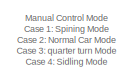
[diagram: root canvas - part 1/3, top left region]
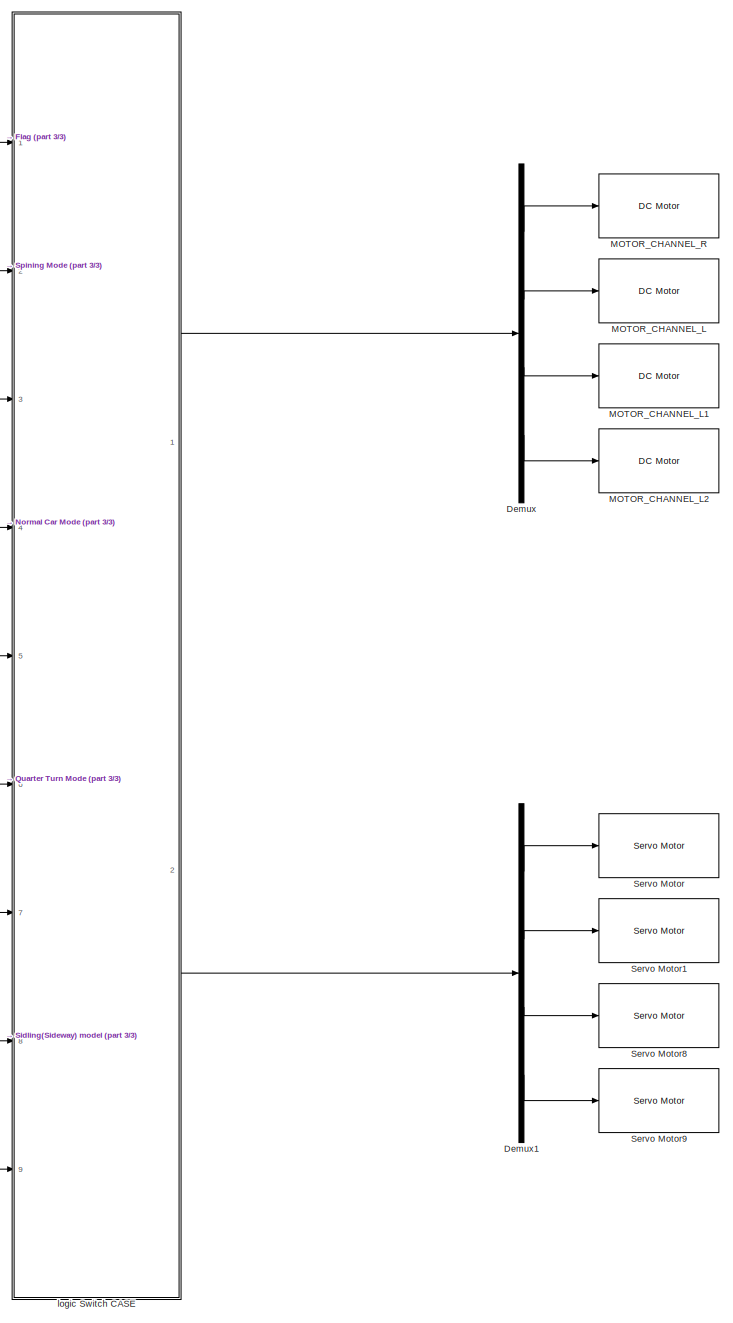
[diagram: root canvas - part 2/3, right side, full height]
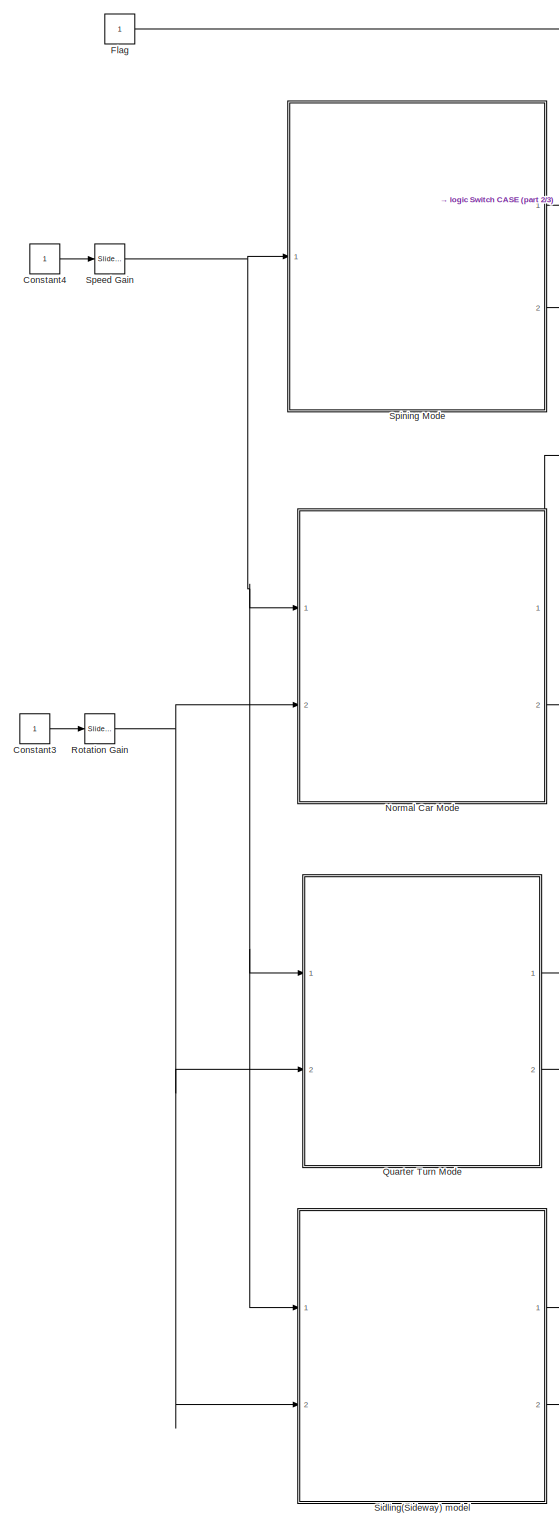
[diagram: root canvas - part 3/3, left side, full height]
MODEL slx_bfc046250066
KIND model
CONFIG AbsTol = auto
CONFIG EnableMultiTasking = on
CONFIG FixedStep = auto
CONFIG MaxStep = auto
CONFIG MinStep = auto
CONFIG RelTol = 1e-3
CONFIG SampleTimeConstraint = Unconstrained
CONFIG Solver = FixedStepAuto
CONFIG SolverName = FixedStepAuto
CONFIG StartTime = 0.0
CONFIG StopTime = inf
BLOCK [Constant] Constant3
BLOCK [Constant] Constant4
BLOCK [Demux] Demux
  DisplayOption = bar
  Ports = [1, 4]
BLOCK [Demux] Demux1
  DisplayOption = bar
  Ports = [1, 4]
BLOCK [Constant] Flag
BLOCK [Reference] MOTOR_CHANNEL_L  REF=bbblueActuatorLib/DC Motor
  Ports = [1]
  SourceBlock = bbblueActuatorLib/DC Motor
  SourceProductName = Simulink Coder Support Package for BeagleBone Blue Hardware
  SourceType = beagleboneblue.bbblueDCMotor
BLOCK [Reference] MOTOR_CHANNEL_L1  REF=bbblueActuatorLib/DC Motor
  Ports = [1]
  SourceBlock = bbblueActuatorLib/DC Motor
  SourceProductName = Simulink Coder Support Package for BeagleBone Blue Hardware
  SourceType = beagleboneblue.bbblueDCMotor
BLOCK [Reference] MOTOR_CHANNEL_L2  REF=bbblueActuatorLib/DC Motor
  Ports = [1]
  SourceBlock = bbblueActuatorLib/DC Motor
  SourceProductName = Simulink Coder Support Package for BeagleBone Blue Hardware
  SourceType = beagleboneblue.bbblueDCMotor
BLOCK [Reference] MOTOR_CHANNEL_R  REF=bbblueActuatorLib/DC Motor
  Ports = [1]
  SourceBlock = bbblueActuatorLib/DC Motor
  SourceProductName = Simulink Coder Support Package for BeagleBone Blue Hardware
  SourceType = beagleboneblue.bbblueDCMotor
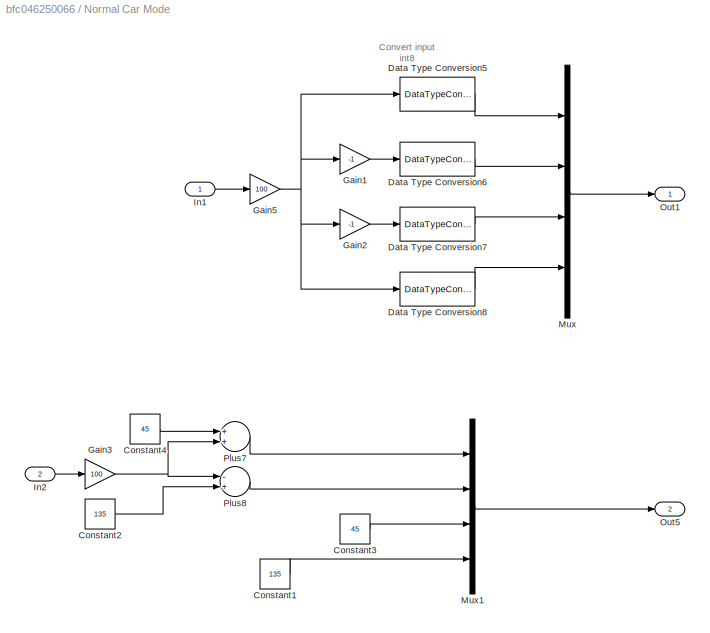
BLOCK [SubSystem] Normal Car Mode
  Ports = [2, 2]
  RequestExecContextInheritance = off
BLOCK [Constant] Normal Car Mode/Constant1
  Value = 135
BLOCK [Constant] Normal Car Mode/Constant2
  Value = 135
BLOCK [Constant] Normal Car Mode/Constant3
  Value = 45
BLOCK [Constant] Normal Car Mode/Constant4
  Value = 45
BLOCK [DataTypeConversion] Normal Car Mode/Data Type Conversion5
  OutDataTypeStr = int8
BLOCK [DataTypeConversion] Normal Car Mode/Data Type Conversion6
  OutDataTypeStr = int8
BLOCK [DataTypeConversion] Normal Car Mode/Data Type Conversion7
  OutDataTypeStr = int8
BLOCK [DataTypeConversion] Normal Car Mode/Data Type Conversion8
  OutDataTypeStr = int8
BLOCK [Gain] Normal Car Mode/Gain1
  Gain = -1
  OutDataTypeStr = Inherit: Inherit via internal rule
  ParamDataTypeStr = Inherit: Inherit via internal rule
  SaturateOnIntegerOverflow = off
BLOCK [Gain] Normal Car Mode/Gain2
  Gain = -1
  OutDataTypeStr = Inherit: Inherit via internal rule
  ParamDataTypeStr = Inherit: Inherit via internal rule
  SaturateOnIntegerOverflow = off
BLOCK [Gain] Normal Car Mode/Gain3
  Gain = 100
  OutDataTypeStr = Inherit: Inherit via internal rule
  ParamDataTypeStr = Inherit: Inherit via internal rule
  SaturateOnIntegerOverflow = off
BLOCK [Gain] Normal Car Mode/Gain5
  Gain = 100
  OutDataTypeStr = Inherit: Inherit via internal rule
  ParamDataTypeStr = Inherit: Inherit via internal rule
  SaturateOnIntegerOverflow = off
BLOCK [Inport] Normal Car Mode/In1
  IconDisplay = Port number
BLOCK [Inport] Normal Car Mode/In2
  IconDisplay = Port number
  Port = 2
BLOCK [Mux] Normal Car Mode/Mux
  DisplayOption = bar
  Ports = [4, 1]
BLOCK [Mux] Normal Car Mode/Mux1
  DisplayOption = bar
  Ports = [4, 1]
BLOCK [Outport] Normal Car Mode/Out1
  IconDisplay = Port number
BLOCK [Outport] Normal Car Mode/Out5
  IconDisplay = Port number
  Port = 2
BLOCK [Sum] Normal Car Mode/Plus7
  InputSameDT = off
  OutDataTypeStr = Inherit: Inherit via internal rule
  Ports = [2, 1]
  SaturateOnIntegerOverflow = off
BLOCK [Sum] Normal Car Mode/Plus8
  InputSameDT = off
  Inputs = -+
  OutDataTypeStr = Inherit: Inherit via internal rule
  Ports = [2, 1]
  SaturateOnIntegerOverflow = off
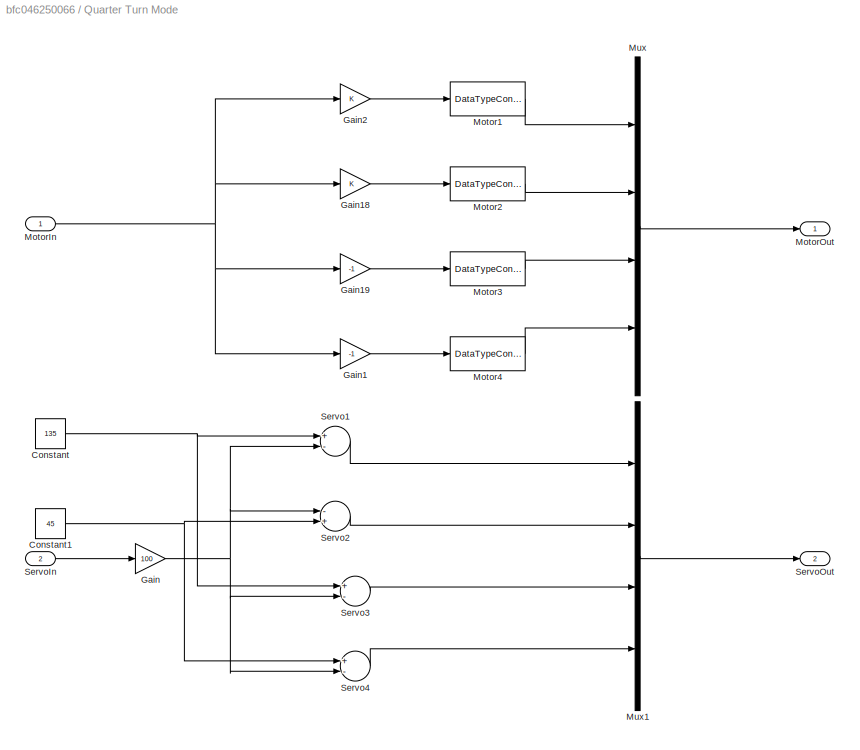
BLOCK [SubSystem] Quarter Turn Mode
  Ports = [2, 2]
  RequestExecContextInheritance = off
BLOCK [Constant] Quarter Turn Mode/Constant
  Value = 135
BLOCK [Constant] Quarter Turn Mode/Constant1
  Value = 45
BLOCK [Gain] Quarter Turn Mode/Gain
  Gain = 100
  OutDataTypeStr = Inherit: Inherit via internal rule
  ParamDataTypeStr = Inherit: Inherit via internal rule
  SaturateOnIntegerOverflow = off
BLOCK [Gain] Quarter Turn Mode/Gain1
  Gain = -1
  OutDataTypeStr = Inherit: Inherit via internal rule
  ParamDataTypeStr = Inherit: Inherit via internal rule
  SaturateOnIntegerOverflow = off
BLOCK [Gain] Quarter Turn Mode/Gain18
  OutDataTypeStr = Inherit: Inherit via internal rule
  ParamDataTypeStr = Inherit: Inherit via internal rule
  SaturateOnIntegerOverflow = off
BLOCK [Gain] Quarter Turn Mode/Gain19
  Gain = -1
  OutDataTypeStr = Inherit: Inherit via internal rule
  ParamDataTypeStr = Inherit: Inherit via internal rule
  SaturateOnIntegerOverflow = off
BLOCK [Gain] Quarter Turn Mode/Gain2
  OutDataTypeStr = Inherit: Inherit via internal rule
  ParamDataTypeStr = Inherit: Inherit via internal rule
  SaturateOnIntegerOverflow = off
BLOCK [DataTypeConversion] Quarter Turn Mode/Motor1
  OutDataTypeStr = int8
  RndMeth = Floor
  SaturateOnIntegerOverflow = off
BLOCK [DataTypeConversion] Quarter Turn Mode/Motor2
  OutDataTypeStr = int8
  RndMeth = Floor
  SaturateOnIntegerOverflow = off
BLOCK [DataTypeConversion] Quarter Turn Mode/Motor3
  OutDataTypeStr = int8
  RndMeth = Floor
  SaturateOnIntegerOverflow = off
BLOCK [DataTypeConversion] Quarter Turn Mode/Motor4
  OutDataTypeStr = int8
  RndMeth = Floor
  SaturateOnIntegerOverflow = off
BLOCK [Inport] Quarter Turn Mode/MotorIn
  IconDisplay = Port number
BLOCK [Outport] Quarter Turn Mode/MotorOut 
  IconDisplay = Port number
BLOCK [Mux] Quarter Turn Mode/Mux
  DisplayOption = bar
  Ports = [4, 1]
BLOCK [Mux] Quarter Turn Mode/Mux1
  DisplayOption = bar
  Ports = [4, 1]
BLOCK [Sum] Quarter Turn Mode/Servo1
  InputSameDT = off
  Inputs = +-
  OutDataTypeStr = Inherit: Inherit via internal rule
  Ports = [2, 1]
  SaturateOnIntegerOverflow = off
BLOCK [Sum] Quarter Turn Mode/Servo2
  InputSameDT = off
  Inputs = -+
  OutDataTypeStr = Inherit: Inherit via internal rule
  Ports = [2, 1]
  SaturateOnIntegerOverflow = off
BLOCK [Sum] Quarter Turn Mode/Servo3
  InputSameDT = off
  Inputs = +-
  OutDataTypeStr = Inherit: Inherit via internal rule
  Ports = [2, 1]
  SaturateOnIntegerOverflow = off
BLOCK [Sum] Quarter Turn Mode/Servo4 
  InputSameDT = off
  Inputs = +-
  OutDataTypeStr = Inherit: Inherit via internal rule
  Ports = [2, 1]
  SaturateOnIntegerOverflow = off
BLOCK [Inport] Quarter Turn Mode/ServoIn
  IconDisplay = Port number
  Port = 2
BLOCK [Outport] Quarter Turn Mode/ServoOut
  IconDisplay = Port number
  Port = 2
BLOCK [Reference] Rotation Gain  REF=simulink/Math
Operations/Slider
Gain
  Ports = [1, 1]
  SourceBlock = simulink/Math\nOperations/Slider\nGain
  SourceProductBaseCode = SL
  SourceProductName = Simulink
  SourceType = Slider Gain
BLOCK [Reference] Servo Motor  REF=bbblueActuatorLib/Servo Motor
  Ports = [1]
  SourceBlock = bbblueActuatorLib/Servo Motor
  SourceProductName = Simulink Coder Support Package for BeagleBone Blue Hardware
  SourceType = beagleboneblue.bbblueServo
BLOCK [Reference] Servo Motor1  REF=bbblueActuatorLib/Servo Motor
  Ports = [1]
  SourceBlock = bbblueActuatorLib/Servo Motor
  SourceProductName = Simulink Coder Support Package for BeagleBone Blue Hardware
  SourceType = beagleboneblue.bbblueServo
BLOCK [Reference] Servo Motor8  REF=bbblueActuatorLib/Servo Motor
  Ports = [1]
  SourceBlock = bbblueActuatorLib/Servo Motor
  SourceProductName = Simulink Coder Support Package for BeagleBone Blue Hardware
  SourceType = beagleboneblue.bbblueServo
BLOCK [Reference] Servo Motor9  REF=bbblueActuatorLib/Servo Motor
  Ports = [1]
  SourceBlock = bbblueActuatorLib/Servo Motor
  SourceProductName = Simulink Coder Support Package for BeagleBone Blue Hardware
  SourceType = beagleboneblue.bbblueServo
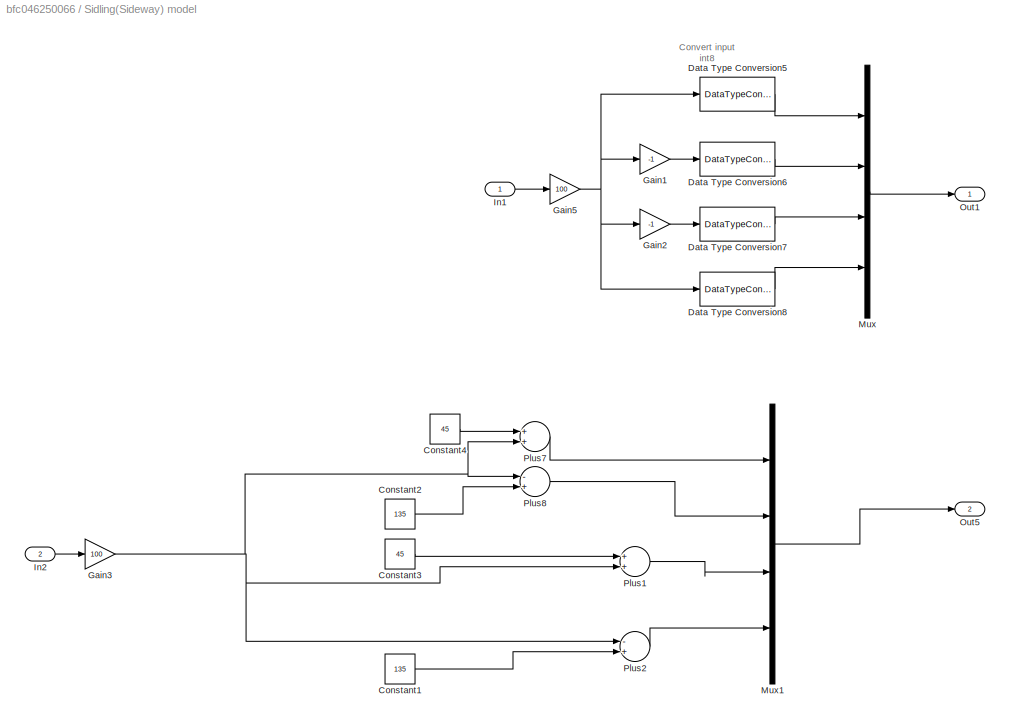
BLOCK [SubSystem] Sidling(Sideway) model
  Ports = [2, 2]
  RequestExecContextInheritance = off
BLOCK [Constant] Sidling(Sideway) model/Constant1
  Value = 135
BLOCK [Constant] Sidling(Sideway) model/Constant2
  Value = 135
BLOCK [Constant] Sidling(Sideway) model/Constant3
  Value = 45
BLOCK [Constant] Sidling(Sideway) model/Constant4
  Value = 45
BLOCK [DataTypeConversion] Sidling(Sideway) model/Data Type Conversion5
  OutDataTypeStr = int8
BLOCK [DataTypeConversion] Sidling(Sideway) model/Data Type Conversion6
  OutDataTypeStr = int8
BLOCK [DataTypeConversion] Sidling(Sideway) model/Data Type Conversion7
  OutDataTypeStr = int8
BLOCK [DataTypeConversion] Sidling(Sideway) model/Data Type Conversion8
  OutDataTypeStr = int8
BLOCK [Gain] Sidling(Sideway) model/Gain1
  Gain = -1
  OutDataTypeStr = Inherit: Inherit via internal rule
  ParamDataTypeStr = Inherit: Inherit via internal rule
  SaturateOnIntegerOverflow = off
BLOCK [Gain] Sidling(Sideway) model/Gain2
  Gain = -1
  OutDataTypeStr = Inherit: Inherit via internal rule
  ParamDataTypeStr = Inherit: Inherit via internal rule
  SaturateOnIntegerOverflow = off
BLOCK [Gain] Sidling(Sideway) model/Gain3
  Gain = 100
  OutDataTypeStr = Inherit: Inherit via internal rule
  ParamDataTypeStr = Inherit: Inherit via internal rule
  SaturateOnIntegerOverflow = off
BLOCK [Gain] Sidling(Sideway) model/Gain5
  Gain = 100
  OutDataTypeStr = Inherit: Inherit via internal rule
  ParamDataTypeStr = Inherit: Inherit via internal rule
  SaturateOnIntegerOverflow = off
BLOCK [Inport] Sidling(Sideway) model/In1
  IconDisplay = Port number
BLOCK [Inport] Sidling(Sideway) model/In2
  IconDisplay = Port number
  Port = 2
BLOCK [Mux] Sidling(Sideway) model/Mux
  DisplayOption = bar
  Ports = [4, 1]
BLOCK [Mux] Sidling(Sideway) model/Mux1
  DisplayOption = bar
  Ports = [4, 1]
BLOCK [Outport] Sidling(Sideway) model/Out1
  IconDisplay = Port number
BLOCK [Outport] Sidling(Sideway) model/Out5
  IconDisplay = Port number
  Port = 2
BLOCK [Sum] Sidling(Sideway) model/Plus1
  InputSameDT = off
  OutDataTypeStr = Inherit: Inherit via internal rule
  Ports = [2, 1]
  SaturateOnIntegerOverflow = off
BLOCK [Sum] Sidling(Sideway) model/Plus2
  InputSameDT = off
  Inputs = -+
  OutDataTypeStr = Inherit: Inherit via internal rule
  Ports = [2, 1]
  SaturateOnIntegerOverflow = off
BLOCK [Sum] Sidling(Sideway) model/Plus7
  InputSameDT = off
  OutDataTypeStr = Inherit: Inherit via internal rule
  Ports = [2, 1]
  SaturateOnIntegerOverflow = off
BLOCK [Sum] Sidling(Sideway) model/Plus8
  InputSameDT = off
  Inputs = -+
  OutDataTypeStr = Inherit: Inherit via internal rule
  Ports = [2, 1]
  SaturateOnIntegerOverflow = off
BLOCK [Reference] Speed Gain  REF=simulink/Math
Operations/Slider
Gain
  Ports = [1, 1]
  SourceBlock = simulink/Math\nOperations/Slider\nGain
  SourceProductBaseCode = SL
  SourceProductName = Simulink
  SourceType = Slider Gain
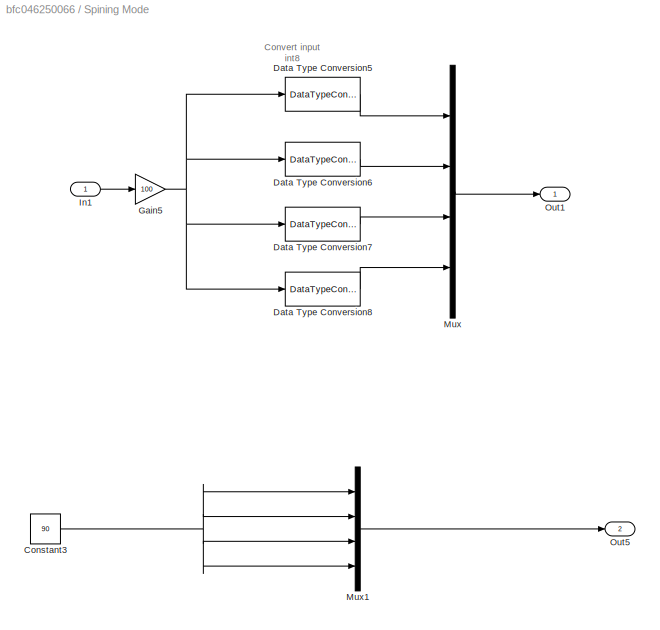
BLOCK [SubSystem] Spining Mode
  Ports = [1, 2]
  RequestExecContextInheritance = off
BLOCK [Constant] Spining Mode/Constant3
  Value = 90
BLOCK [DataTypeConversion] Spining Mode/Data Type Conversion5
  OutDataTypeStr = int8
BLOCK [DataTypeConversion] Spining Mode/Data Type Conversion6
  OutDataTypeStr = int8
BLOCK [DataTypeConversion] Spining Mode/Data Type Conversion7
  OutDataTypeStr = int8
BLOCK [DataTypeConversion] Spining Mode/Data Type Conversion8
  OutDataTypeStr = int8
BLOCK [Gain] Spining Mode/Gain5
  Gain = 100
  OutDataTypeStr = Inherit: Inherit via internal rule
  ParamDataTypeStr = Inherit: Inherit via internal rule
  SaturateOnIntegerOverflow = off
BLOCK [Inport] Spining Mode/In1
  IconDisplay = Port number
BLOCK [Mux] Spining Mode/Mux
  DisplayOption = bar
  Ports = [4, 1]
BLOCK [Mux] Spining Mode/Mux1
  DisplayOption = bar
  Ports = [4, 1]
BLOCK [Outport] Spining Mode/Out1
  IconDisplay = Port number
BLOCK [Outport] Spining Mode/Out5
  IconDisplay = Port number
  Port = 2
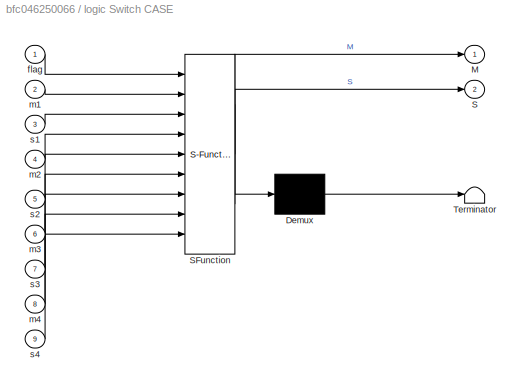
BLOCK [SubSystem] logic Switch CASE
  ErrorFcn = Stateflow.Translate.translate
  PermitHierarchicalResolution = ExplicitOnly
  Ports = [9, 2]
  RequestExecContextInheritance = off
  SFBlockType = MATLAB Function
  TreatAsAtomicUnit = on
BLOCK [Demux] logic Switch CASE/ Demux 
  Outputs = 1
  Ports = [1, 1]
BLOCK [S-Function] logic Switch CASE/ SFunction 
  EnableBusSupport = on
  FunctionName = sf_sfun
  PortCounts = [9 3]
  Ports = [9, 3]
  SFcnIsStateOwnerBlock = off
  SFunctionDeploymentMode = off
  Tag = Stateflow S-Function servos_logics 2
BLOCK [Terminator] logic Switch CASE/ Terminator 
BLOCK [Outport] logic Switch CASE/M
  IconDisplay = Port number
BLOCK [Outport] logic Switch CASE/S
  IconDisplay = Port number
  Port = 2
BLOCK [Inport] logic Switch CASE/flag
  IconDisplay = Port number
BLOCK [Inport] logic Switch CASE/m1
  IconDisplay = Port number
  Port = 2
BLOCK [Inport] logic Switch CASE/m2
  IconDisplay = Port number
  Port = 4
BLOCK [Inport] logic Switch CASE/m3
  IconDisplay = Port number
  Port = 6
BLOCK [Inport] logic Switch CASE/m4
  IconDisplay = Port number
  Port = 8
BLOCK [Inport] logic Switch CASE/s1
  IconDisplay = Port number
  Port = 3
BLOCK [Inport] logic Switch CASE/s2
  IconDisplay = Port number
  Port = 5
BLOCK [Inport] logic Switch CASE/s3
  IconDisplay = Port number
  Port = 7
BLOCK [Inport] logic Switch CASE/s4
  IconDisplay = Port number
  Port = 9
ANNOTATION (root): Manual Control Mode Case 1: Spining Mode Case 2: Normal Car Mode Case 3: quarter turn Mode Case 4: Sidling Mode
ANNOTATION Normal Car Mode: Convert input int8
ANNOTATION Sidling(Sideway) model: Convert input int8
ANNOTATION Spining Mode: Convert input int8
LINE Constant3:1 -> Rotation Gain:1
LINE Constant4:1 -> Speed Gain:1
LINE Demux1:1 -> Servo Motor:1
LINE Demux1:2 -> Servo Motor1:1
LINE Demux1:3 -> Servo Motor8:1
LINE Demux1:4 -> Servo Motor9:1
LINE Demux:1 -> MOTOR_CHANNEL_R:1
LINE Demux:2 -> MOTOR_CHANNEL_L:1
LINE Demux:3 -> MOTOR_CHANNEL_L1:1
LINE Demux:4 -> MOTOR_CHANNEL_L2:1
LINE Flag:1 -> logic Switch CASE:1
LINE Normal Car Mode/Constant1:1 -> Normal Car Mode/Mux1:4
LINE Normal Car Mode/Constant2:1 -> Normal Car Mode/Plus8:2
LINE Normal Car Mode/Constant3:1 -> Normal Car Mode/Mux1:3
LINE Normal Car Mode/Constant4:1 -> Normal Car Mode/Plus7:1
LINE Normal Car Mode/Data Type Conversion5:1 -> Normal Car Mode/Mux:1
LINE Normal Car Mode/Data Type Conversion6:1 -> Normal Car Mode/Mux:2
LINE Normal Car Mode/Data Type Conversion7:1 -> Normal Car Mode/Mux:3
LINE Normal Car Mode/Data Type Conversion8:1 -> Normal Car Mode/Mux:4
LINE Normal Car Mode/Gain1:1 -> Normal Car Mode/Data Type Conversion6:1
LINE Normal Car Mode/Gain2:1 -> Normal Car Mode/Data Type Conversion7:1
NET Normal Car Mode/Gain3:1 -> Normal Car Mode/Plus7:2, Normal Car Mode/Plus8:1
NET Normal Car Mode/Gain5:1 -> Normal Car Mode/Data Type Conversion5:1, Normal Car Mode/Data Type Conversion8:1, Normal Car Mode/Gain1:1, Normal Car Mode/Gain2:1
LINE Normal Car Mode/In1:1 -> Normal Car Mode/Gain5:1
LINE Normal Car Mode/In2:1 -> Normal Car Mode/Gain3:1
LINE Normal Car Mode/Mux1:1 -> Normal Car Mode/Out5:1
LINE Normal Car Mode/Mux:1 -> Normal Car Mode/Out1:1
LINE Normal Car Mode/Plus7:1 -> Normal Car Mode/Mux1:1
LINE Normal Car Mode/Plus8:1 -> Normal Car Mode/Mux1:2
LINE Normal Car Mode:1 -> logic Switch CASE:4
LINE Normal Car Mode:2 -> logic Switch CASE:5
NET Quarter Turn Mode/Constant1:1 -> Quarter Turn Mode/Servo2:2, Quarter Turn Mode/Servo4 :1
NET Quarter Turn Mode/Constant:1 -> Quarter Turn Mode/Servo1:1, Quarter Turn Mode/Servo3:1
LINE Quarter Turn Mode/Gain18:1 -> Quarter Turn Mode/Motor2:1
LINE Quarter Turn Mode/Gain19:1 -> Quarter Turn Mode/Motor3:1
LINE Quarter Turn Mode/Gain1:1 -> Quarter Turn Mode/Motor4:1
LINE Quarter Turn Mode/Gain2:1 -> Quarter Turn Mode/Motor1:1
NET Quarter Turn Mode/Gain:1 -> Quarter Turn Mode/Servo1:2, Quarter Turn Mode/Servo2:1, Quarter Turn Mode/Servo3:2, Quarter Turn Mode/Servo4 :2
LINE Quarter Turn Mode/Motor1:1 -> Quarter Turn Mode/Mux:1
LINE Quarter Turn Mode/Motor2:1 -> Quarter Turn Mode/Mux:2
LINE Quarter Turn Mode/Motor3:1 -> Quarter Turn Mode/Mux:3
LINE Quarter Turn Mode/Motor4:1 -> Quarter Turn Mode/Mux:4
NET Quarter Turn Mode/MotorIn:1 -> Quarter Turn Mode/Gain18:1, Quarter Turn Mode/Gain19:1, Quarter Turn Mode/Gain1:1, Quarter Turn Mode/Gain2:1
LINE Quarter Turn Mode/Mux1:1 -> Quarter Turn Mode/ServoOut:1
LINE Quarter Turn Mode/Mux:1 -> Quarter Turn Mode/MotorOut :1
LINE Quarter Turn Mode/Servo1:1 -> Quarter Turn Mode/Mux1:1
LINE Quarter Turn Mode/Servo2:1 -> Quarter Turn Mode/Mux1:2
LINE Quarter Turn Mode/Servo3:1 -> Quarter Turn Mode/Mux1:3
LINE Quarter Turn Mode/Servo4 :1 -> Quarter Turn Mode/Mux1:4
LINE Quarter Turn Mode/ServoIn:1 -> Quarter Turn Mode/Gain:1
LINE Quarter Turn Mode:1 -> logic Switch CASE:6
LINE Quarter Turn Mode:2 -> logic Switch CASE:7
NET Rotation Gain:1 -> Normal Car Mode:2, Quarter Turn Mode:2, Sidling(Sideway) model:2
LINE Sidling(Sideway) model/Constant1:1 -> Sidling(Sideway) model/Plus2:2
LINE Sidling(Sideway) model/Constant2:1 -> Sidling(Sideway) model/Plus8:2
LINE Sidling(Sideway) model/Constant3:1 -> Sidling(Sideway) model/Plus1:1
LINE Sidling(Sideway) model/Constant4:1 -> Sidling(Sideway) model/Plus7:1
LINE Sidling(Sideway) model/Data Type Conversion5:1 -> Sidling(Sideway) model/Mux:1
LINE Sidling(Sideway) model/Data Type Conversion6:1 -> Sidling(Sideway) model/Mux:2
LINE Sidling(Sideway) model/Data Type Conversion7:1 -> Sidling(Sideway) model/Mux:3
LINE Sidling(Sideway) model/Data Type Conversion8:1 -> Sidling(Sideway) model/Mux:4
LINE Sidling(Sideway) model/Gain1:1 -> Sidling(Sideway) model/Data Type Conversion6:1
LINE Sidling(Sideway) model/Gain2:1 -> Sidling(Sideway) model/Data Type Conversion7:1
NET Sidling(Sideway) model/Gain3:1 -> Sidling(Sideway) model/Plus1:2, Sidling(Sideway) model/Plus2:1, Sidling(Sideway) model/Plus7:2, Sidling(Sideway) model/Plus8:1
NET Sidling(Sideway) model/Gain5:1 -> Sidling(Sideway) model/Data Type Conversion5:1, Sidling(Sideway) model/Data Type Conversion8:1, Sidling(Sideway) model/Gain1:1, Sidling(Sideway) model/Gain2:1
LINE Sidling(Sideway) model/In1:1 -> Sidling(Sideway) model/Gain5:1
LINE Sidling(Sideway) model/In2:1 -> Sidling(Sideway) model/Gain3:1
LINE Sidling(Sideway) model/Mux1:1 -> Sidling(Sideway) model/Out5:1
LINE Sidling(Sideway) model/Mux:1 -> Sidling(Sideway) model/Out1:1
LINE Sidling(Sideway) model/Plus1:1 -> Sidling(Sideway) model/Mux1:3
LINE Sidling(Sideway) model/Plus2:1 -> Sidling(Sideway) model/Mux1:4
LINE Sidling(Sideway) model/Plus7:1 -> Sidling(Sideway) model/Mux1:1
LINE Sidling(Sideway) model/Plus8:1 -> Sidling(Sideway) model/Mux1:2
LINE Sidling(Sideway) model:1 -> logic Switch CASE:8
LINE Sidling(Sideway) model:2 -> logic Switch CASE:9
NET Speed Gain:1 -> Normal Car Mode:1, Quarter Turn Mode:1, Sidling(Sideway) model:1, Spining Mode:1
NET Spining Mode/Constant3:1 -> Spining Mode/Mux1:1, Spining Mode/Mux1:2, Spining Mode/Mux1:3, Spining Mode/Mux1:4
LINE Spining Mode/Data Type Conversion5:1 -> Spining Mode/Mux:1
LINE Spining Mode/Data Type Conversion6:1 -> Spining Mode/Mux:2
LINE Spining Mode/Data Type Conversion7:1 -> Spining Mode/Mux:3
LINE Spining Mode/Data Type Conversion8:1 -> Spining Mode/Mux:4
NET Spining Mode/Gain5:1 -> Spining Mode/Data Type Conversion5:1, Spining Mode/Data Type Conversion6:1, Spining Mode/Data Type Conversion7:1, Spining Mode/Data Type Conversion8:1
LINE Spining Mode/In1:1 -> Spining Mode/Gain5:1
LINE Spining Mode/Mux1:1 -> Spining Mode/Out5:1
LINE Spining Mode/Mux:1 -> Spining Mode/Out1:1
LINE Spining Mode:1 -> logic Switch CASE:2
LINE Spining Mode:2 -> logic Switch CASE:3
LINE logic Switch CASE:1 -> Demux:1
LINE logic Switch CASE:2 -> Demux1:1
note: NET lines group one-source signal fan-out (src -> all destinations, sorted); 1:1 wires keep LINE
CHART logic Switch CASE states=1 transitions=1
  STATE_LABEL 'eML_blk_kernel()'
  STATE_LABEL 'SCRIPT:\nfunction [M,S]= fcn(flag,m1,s1,m2,s2,m3,s3,m4,s4)\nif flag == 1\n    M = m1;\n    S = s1;\nelseif  flag == 2\n    M = m2;\n    S = s2;\nelseif flag ==3\n    \n    M = m3;\n    S = s3;\nelse \n    M = m4;\n    S = s4;\n    end\n\n\nend\n\n'
